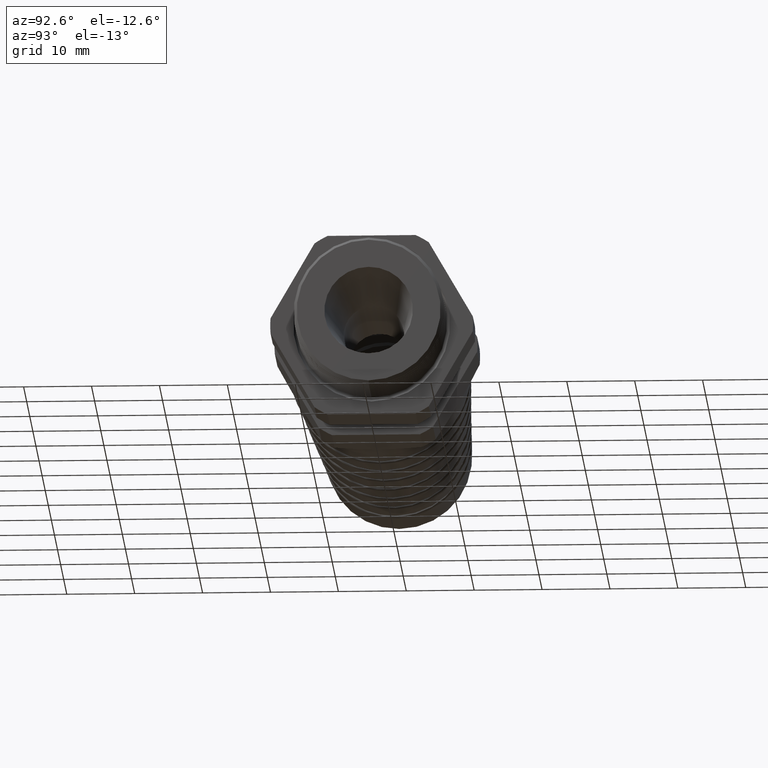
[diagram: clean part render]
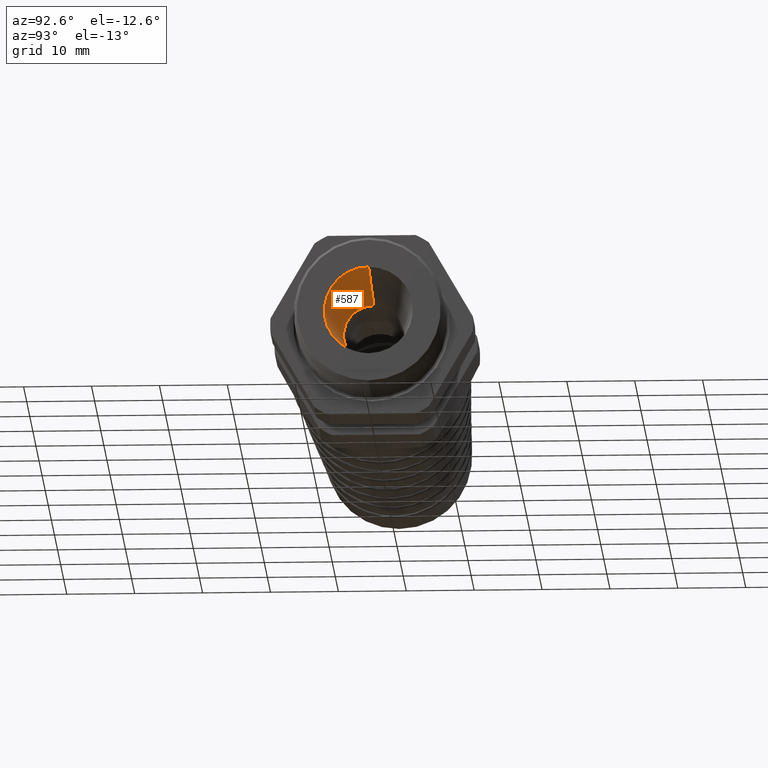
[diagram: same view with one face highlighted and labeled with its STEP entity id]
A machine part, auxiliary view. The second image highlights one B-rep face of the part: STEP entity #587.
In plain terms, the highlighted conical surface has half-angle 7 deg.
Its self-contained STEP definition (entity closure, byte-faithful):
#417 = VERTEX_POINT ( 'NONE', #6982 ) ;
#422 = VERTEX_POINT ( 'NONE', #6972 ) ;
#430 = VERTEX_POINT ( 'NONE', #6965 ) ;
#433 = ORIENTED_EDGE ( 'NONE', *, *, #3618, .T. ) ;
#436 = ORIENTED_EDGE ( 'NONE', *, *, #604, .F. ) ;
#437 = VERTEX_POINT ( 'NONE', #6964 ) ;
#584 = ORIENTED_EDGE ( 'NONE', *, *, #585, .F. ) ;
#585 = EDGE_CURVE ( 'NONE', #437, #422, #7277, .T. ) ;
#586 = EDGE_LOOP ( 'NONE', ( #584, #433, #2985, #436 ) ) ;
#587 = ADVANCED_FACE ( 'NONE', ( #7272 ), #7271, .F. ) ;
#604 = EDGE_CURVE ( 'NONE', #422, #430, #7359, .T. ) ;
#2982 = EDGE_CURVE ( 'NONE', #417, #430, #7355, .T. ) ;
#2985 = ORIENTED_EDGE ( 'NONE', *, *, #2982, .T. ) ;
#3618 = EDGE_CURVE ( 'NONE', #437, #417, #7350, .T. ) ;
#6964 = CARTESIAN_POINT ( 'NONE',  ( -0.5855905511811021500, 2.143131898507868000E-017, 0.1749999999999999900 ) ) ;
#6965 = CARTESIAN_POINT ( 'NONE',  ( 0.08000000000000009900, 0.0000000000000000000, -0.2567242435678894200 ) ) ;
#6972 = CARTESIAN_POINT ( 'NONE',  ( -0.5855905511811021500, 0.0000000000000000000, -0.1749999999999999900 ) ) ;
#6982 = CARTESIAN_POINT ( 'NONE',  ( 0.08000000000000009900, 3.143965231489412800E-017, 0.2567242435678894200 ) ) ;
#7267 = DIRECTION ( 'NONE',  ( 0.0000000000000000000, 0.0000000000000000000, -1.000000000000000000 ) ) ;
#7268 = DIRECTION ( 'NONE',  ( 1.000000000000000000, 0.0000000000000000000, 0.0000000000000000000 ) ) ;
#7269 = CARTESIAN_POINT ( 'NONE',  ( -0.5855905511811021500, 0.0000000000000000000, 0.0000000000000000000 ) ) ;
#7270 = AXIS2_PLACEMENT_3D ( 'NONE', #7269, #7268, #7267 ) ;
#7271 = CONICAL_SURFACE ( 'NONE', #7270, 0.1749999999999999900, 0.1221730476395964800 ) ;
#7272 = FACE_OUTER_BOUND ( 'NONE', #586, .T. ) ;
#7273 = DIRECTION ( 'NONE',  ( 0.0000000000000000000, 0.0000000000000000000, -1.000000000000000000 ) ) ;
#7274 = DIRECTION ( 'NONE',  ( 1.000000000000000000, 0.0000000000000000000, 0.0000000000000000000 ) ) ;
#7275 = CARTESIAN_POINT ( 'NONE',  ( -0.5855905511811021500, 0.0000000000000000000, 0.0000000000000000000 ) ) ;
#7276 = AXIS2_PLACEMENT_3D ( 'NONE', #7275, #7274, #7273 ) ;
#7277 = CIRCLE ( 'NONE', #7276, 0.1749999999999999900 ) ;
#7347 = DIRECTION ( 'NONE',  ( 0.9925461516413227600, 1.492469013152954300E-017, 0.1218693434051409300 ) ) ;
#7348 = VECTOR ( 'NONE', #7347, 39.37007874015748900 ) ;
#7349 = CARTESIAN_POINT ( 'NONE',  ( -0.5855905511811021500, 2.143131898507868000E-017, 0.1749999999999999900 ) ) ;
#7350 = LINE ( 'NONE', #7349, #7348 ) ;
#7351 = DIRECTION ( 'NONE',  ( 0.0000000000000000000, 0.0000000000000000000, -1.000000000000000000 ) ) ;
#7352 = DIRECTION ( 'NONE',  ( 1.000000000000000000, 0.0000000000000000000, 0.0000000000000000000 ) ) ;
#7353 = CARTESIAN_POINT ( 'NONE',  ( 0.08000000000000009900, 0.0000000000000000000, 0.0000000000000000000 ) ) ;
#7354 = AXIS2_PLACEMENT_3D ( 'NONE', #7353, #7352, #7351 ) ;
#7355 = CIRCLE ( 'NONE', #7354, 0.2567242435678894200 ) ;
#7356 = DIRECTION ( 'NONE',  ( 0.9925461516413227600, 0.0000000000000000000, -0.1218693434051409300 ) ) ;
#7357 = VECTOR ( 'NONE', #7356, 39.37007874015748900 ) ;
#7358 = CARTESIAN_POINT ( 'NONE',  ( -0.5855905511811021500, 0.0000000000000000000, -0.1749999999999999900 ) ) ;
#7359 = LINE ( 'NONE', #7358, #7357 ) ;